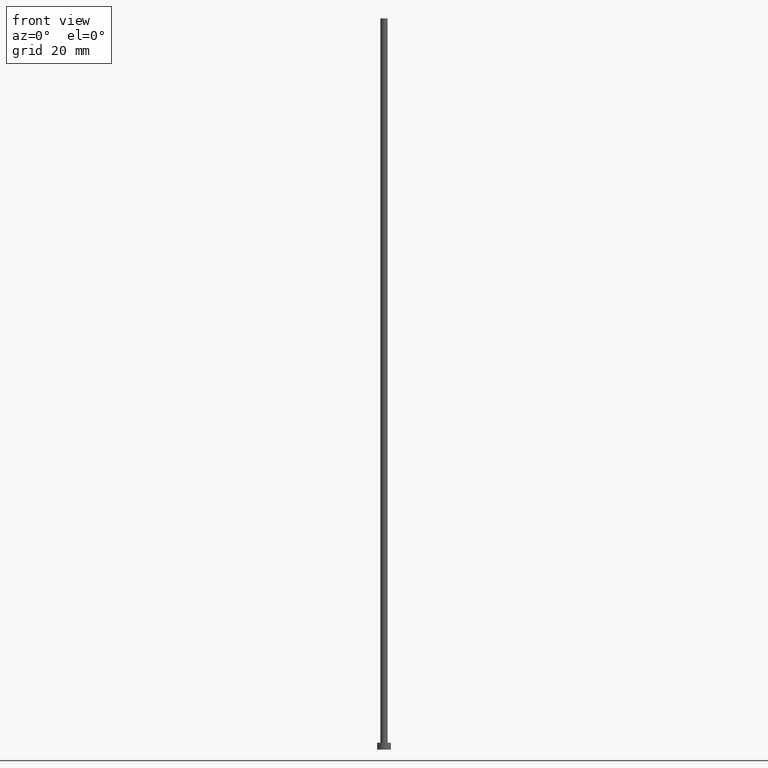
[diagram: clean part render]
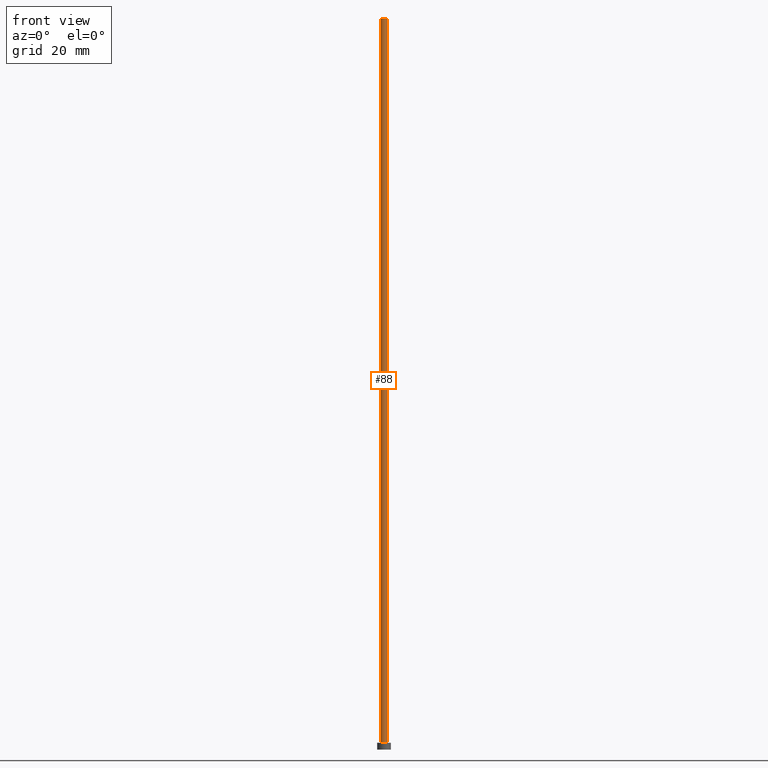
[diagram: same view with one face highlighted and labeled with its STEP entity id]
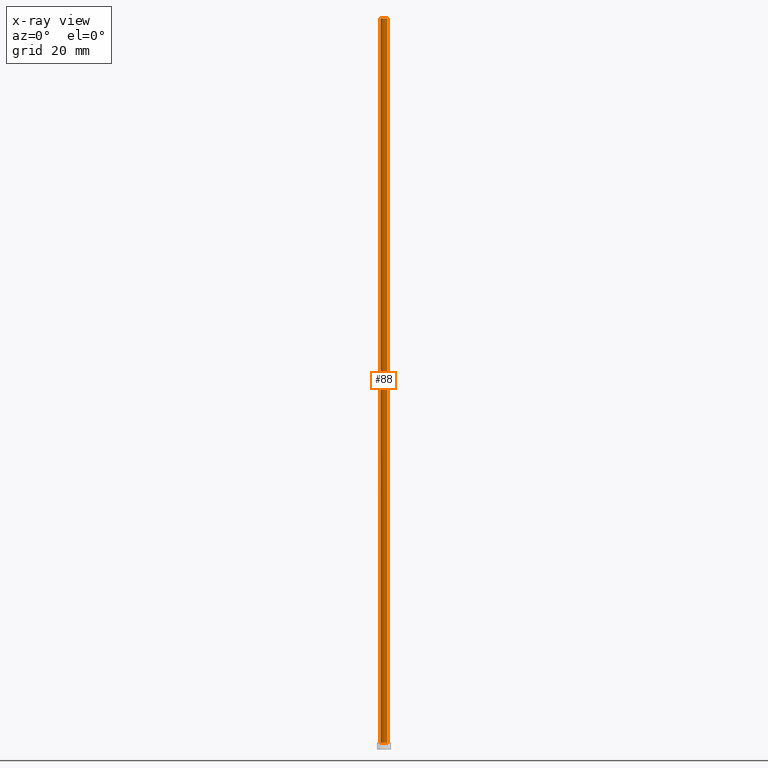
[diagram: x-ray of the same camera — body ghosted, the highlighted face saturated]
A machine part, front view. The second image highlights one B-rep face of the part: STEP entity #88.
The next image is the same camera in x-ray: the body ghosted, the highlighted face saturated — about 0% of this face is hidden behind the body in this view.
In plain terms, the highlighted cylindrical surface (edge-blend (fillet) strip) has radius 0.8 mm, axis along (-0, -0, -1).
Its self-contained STEP definition (entity closure, byte-faithful):
#1 = CYLINDRICAL_SURFACE ( 'NONE', #44, 0.8000000000000000444 ) ;
#2 = CARTESIAN_POINT ( 'NONE',  ( 0.000000000000000000, 0.000000000000000000, 160.0000000000000000 ) ) ;
#8 = VECTOR ( 'NONE', #214, 1000.000000000000000 ) ;
#14 = EDGE_CURVE ( 'NONE', #74, #196, #222, .T. ) ;
#25 = CARTESIAN_POINT ( 'NONE',  ( -0.8000000000000000444, 0.000000000000000000, 1.500000000000000000 ) ) ;
#34 = DIRECTION ( 'NONE',  ( 1.000000000000000000, 0.000000000000000000, 0.000000000000000000 ) ) ;
#35 = LINE ( 'NONE', #96, #8 ) ;
#36 = EDGE_CURVE ( 'NONE', #74, #154, #35, .T. ) ;
#43 = CARTESIAN_POINT ( 'NONE',  ( 0.8000000000000000444, 9.797174393178826150E-17, 1.500000000000000000 ) ) ;
#44 = AXIS2_PLACEMENT_3D ( 'NONE', #2, #60, #140 ) ;
#60 = DIRECTION ( 'NONE',  ( -0.000000000000000000, -0.000000000000000000, -1.000000000000000000 ) ) ;
#63 = CARTESIAN_POINT ( 'NONE',  ( 0.000000000000000000, 0.000000000000000000, 1.500000000000000000 ) ) ;
#66 = CIRCLE ( 'NONE', #100, 0.8000000000000000444 ) ;
#74 = VERTEX_POINT ( 'NONE', #97 ) ;
#76 = FACE_OUTER_BOUND ( 'NONE', #165, .T. ) ;
#88 = ADVANCED_FACE ( 'NONE', ( #76 ), #1, .T. ) ;
#90 = ORIENTED_EDGE ( 'NONE', *, *, #237, .F. ) ;
#96 = CARTESIAN_POINT ( 'NONE',  ( -0.8000000000000000444, 0.000000000000000000, 160.0000000000000000 ) ) ;
#97 = CARTESIAN_POINT ( 'NONE',  ( -0.8000000000000000444, 0.000000000000000000, 160.0000000000000000 ) ) ;
#100 = AXIS2_PLACEMENT_3D ( 'NONE', #63, #143, #103 ) ;
#103 = DIRECTION ( 'NONE',  ( 1.000000000000000000, 0.000000000000000000, 0.000000000000000000 ) ) ;
#122 = CARTESIAN_POINT ( 'NONE',  ( 0.8000000000000000444, 9.797174393178826150E-17, 160.0000000000000000 ) ) ;
#128 = AXIS2_PLACEMENT_3D ( 'NONE', #252, #138, #34 ) ;
#138 = DIRECTION ( 'NONE',  ( 0.000000000000000000, 0.000000000000000000, 1.000000000000000000 ) ) ;
#140 = DIRECTION ( 'NONE',  ( -1.000000000000000000, 0.000000000000000000, 0.000000000000000000 ) ) ;
#143 = DIRECTION ( 'NONE',  ( 0.000000000000000000, 0.000000000000000000, 1.000000000000000000 ) ) ;
#144 = DIRECTION ( 'NONE',  ( -0.000000000000000000, -0.000000000000000000, -1.000000000000000000 ) ) ;
#152 = VECTOR ( 'NONE', #144, 1000.000000000000000 ) ;
#154 = VERTEX_POINT ( 'NONE', #25 ) ;
#160 = EDGE_CURVE ( 'NONE', #154, #179, #66, .T. ) ;
#165 = EDGE_LOOP ( 'NONE', ( #90, #176, #248, #232 ) ) ;
#176 = ORIENTED_EDGE ( 'NONE', *, *, #14, .F. ) ;
#179 = VERTEX_POINT ( 'NONE', #43 ) ;
#189 = CARTESIAN_POINT ( 'NONE',  ( 0.8000000000000000444, 9.797174393178826150E-17, 160.0000000000000000 ) ) ;
#196 = VERTEX_POINT ( 'NONE', #122 ) ;
#206 = LINE ( 'NONE', #189, #152 ) ;
#214 = DIRECTION ( 'NONE',  ( -0.000000000000000000, -0.000000000000000000, -1.000000000000000000 ) ) ;
#222 = CIRCLE ( 'NONE', #128, 0.8000000000000000444 ) ;
#232 = ORIENTED_EDGE ( 'NONE', *, *, #160, .T. ) ;
#237 = EDGE_CURVE ( 'NONE', #196, #179, #206, .T. ) ;
#248 = ORIENTED_EDGE ( 'NONE', *, *, #36, .T. ) ;
#252 = CARTESIAN_POINT ( 'NONE',  ( 0.000000000000000000, 0.000000000000000000, 160.0000000000000000 ) ) ;